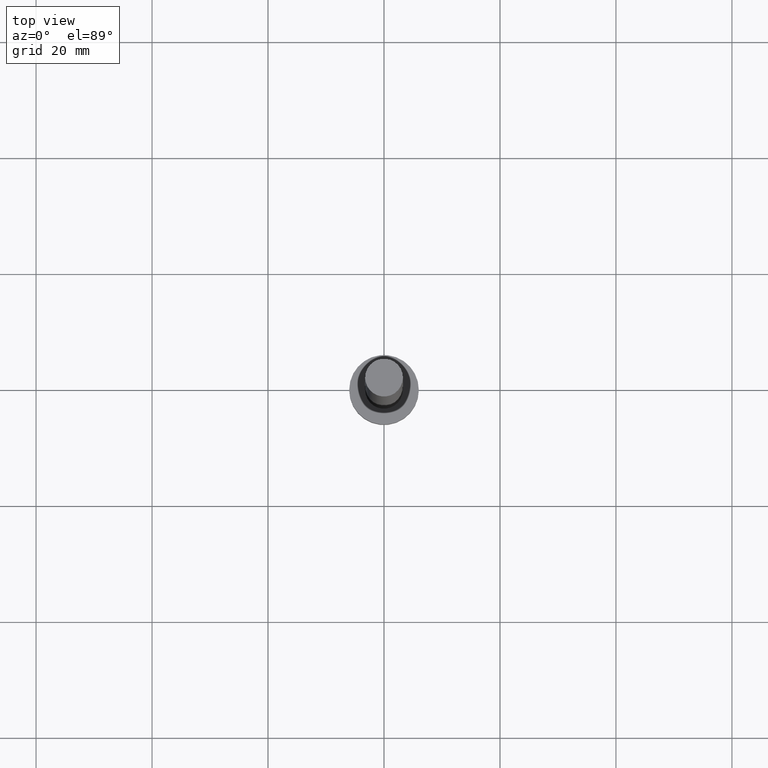
[diagram: clean part render]
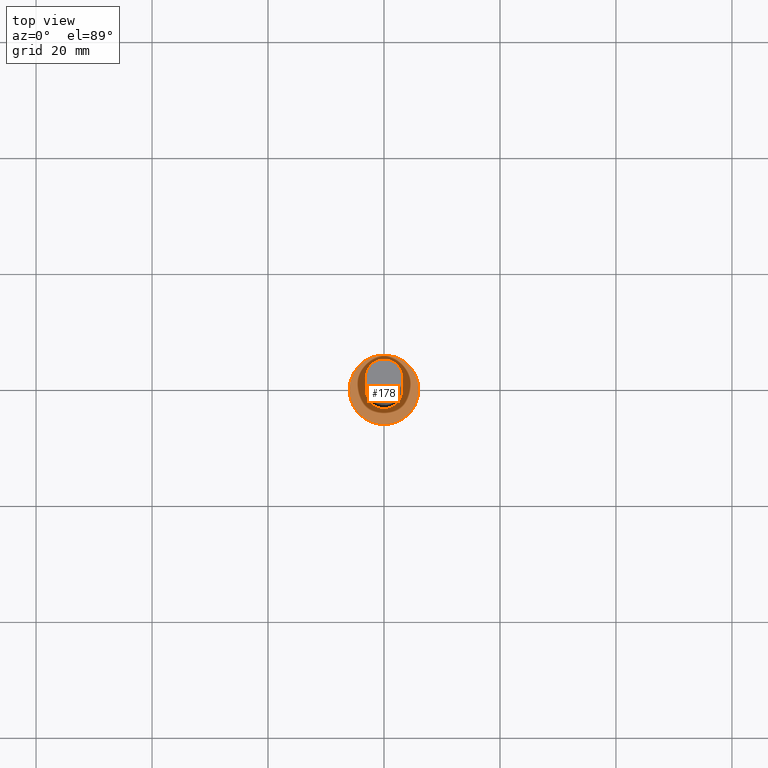
[diagram: same view with one face highlighted and labeled with its STEP entity id]
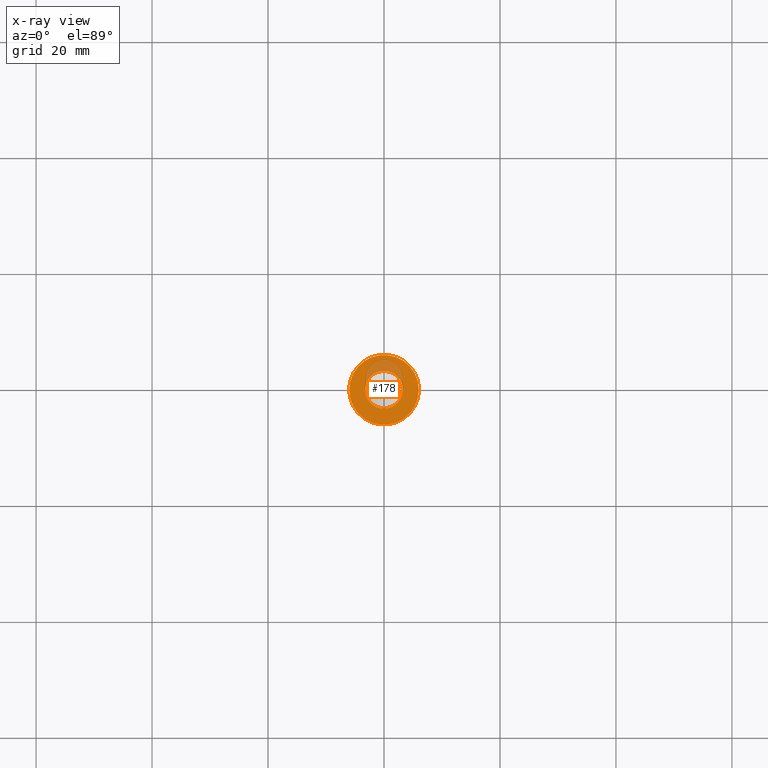
[diagram: x-ray of the same camera — body ghosted, the highlighted face saturated]
A machine part, top view. The second image highlights one B-rep face of the part: STEP entity #178.
The next image is the same camera in x-ray: the body ghosted, the highlighted face saturated — about 17% of this face is hidden behind the body in this view.
In plain terms, the highlighted planar face has unit normal (0, 0, 1).
Its self-contained STEP definition (entity closure, byte-faithful):
#4 = ORIENTED_EDGE ( 'NONE', *, *, #38, .F. ) ;
#8 = FACE_OUTER_BOUND ( 'NONE', #214, .T. ) ;
#12 = EDGE_CURVE ( 'NONE', #165, #32, #95, .T. ) ;
#19 = DIRECTION ( 'NONE',  ( 1.000000000000000000, 0.000000000000000000, 0.000000000000000000 ) ) ;
#20 = CIRCLE ( 'NONE', #212, 6.000000000000000888 ) ;
#32 = VERTEX_POINT ( 'NONE', #204 ) ;
#38 = EDGE_CURVE ( 'NONE', #90, #53, #244, .T. ) ;
#43 = CARTESIAN_POINT ( 'NONE',  ( 0.000000000000000000, 0.000000000000000000, 5.000000000000000000 ) ) ;
#47 = DIRECTION ( 'NONE',  ( 1.000000000000000000, 0.000000000000000000, 0.000000000000000000 ) ) ;
#51 = DIRECTION ( 'NONE',  ( 1.000000000000000000, 0.000000000000000000, 0.000000000000000000 ) ) ;
#53 = VERTEX_POINT ( 'NONE', #127 ) ;
#63 = DIRECTION ( 'NONE',  ( 1.000000000000000000, 0.000000000000000000, -0.000000000000000000 ) ) ;
#73 = CIRCLE ( 'NONE', #138, 3.250000000000000444 ) ;
#75 = EDGE_CURVE ( 'NONE', #53, #90, #73, .T. ) ;
#77 = AXIS2_PLACEMENT_3D ( 'NONE', #142, #143, #47 ) ;
#84 = CARTESIAN_POINT ( 'NONE',  ( 0.000000000000000000, 0.000000000000000000, 5.000000000000000000 ) ) ;
#88 = CARTESIAN_POINT ( 'NONE',  ( -6.000000000000000888, 0.000000000000000000, 5.000000000000000000 ) ) ;
#90 = VERTEX_POINT ( 'NONE', #152 ) ;
#95 = CIRCLE ( 'NONE', #150, 6.000000000000000888 ) ;
#99 = CARTESIAN_POINT ( 'NONE',  ( 0.000000000000000000, 0.000000000000000000, 5.000000000000000000 ) ) ;
#107 = ORIENTED_EDGE ( 'NONE', *, *, #12, .T. ) ;
#109 = FACE_BOUND ( 'NONE', #243, .T. ) ;
#123 = DIRECTION ( 'NONE',  ( 0.000000000000000000, 0.000000000000000000, 1.000000000000000000 ) ) ;
#127 = CARTESIAN_POINT ( 'NONE',  ( -3.250000000000000444, 0.000000000000000000, 5.000000000000000000 ) ) ;
#138 = AXIS2_PLACEMENT_3D ( 'NONE', #99, #159, #51 ) ;
#142 = CARTESIAN_POINT ( 'NONE',  ( 0.000000000000000000, 0.000000000000000000, 5.000000000000000000 ) ) ;
#143 = DIRECTION ( 'NONE',  ( 0.000000000000000000, 0.000000000000000000, 1.000000000000000000 ) ) ;
#144 = CARTESIAN_POINT ( 'NONE',  ( 0.000000000000000000, 0.000000000000000000, 5.000000000000000000 ) ) ;
#147 = EDGE_CURVE ( 'NONE', #32, #165, #20, .T. ) ;
#150 = AXIS2_PLACEMENT_3D ( 'NONE', #144, #239, #237 ) ;
#152 = CARTESIAN_POINT ( 'NONE',  ( 3.250000000000000444, 3.980102097228898231E-16, 5.000000000000000000 ) ) ;
#159 = DIRECTION ( 'NONE',  ( 0.000000000000000000, 0.000000000000000000, 1.000000000000000000 ) ) ;
#162 = DIRECTION ( 'NONE',  ( 0.000000000000000000, 0.000000000000000000, 1.000000000000000000 ) ) ;
#165 = VERTEX_POINT ( 'NONE', #88 ) ;
#174 = ORIENTED_EDGE ( 'NONE', *, *, #75, .F. ) ;
#178 = ADVANCED_FACE ( 'NONE', ( #109, #8 ), #186, .T. ) ;
#186 = PLANE ( 'NONE',  #199 ) ;
#199 = AXIS2_PLACEMENT_3D ( 'NONE', #84, #162, #63 ) ;
#204 = CARTESIAN_POINT ( 'NONE',  ( 6.000000000000000888, 7.347880794884120722E-16, 5.000000000000000000 ) ) ;
#212 = AXIS2_PLACEMENT_3D ( 'NONE', #43, #123, #19 ) ;
#214 = EDGE_LOOP ( 'NONE', ( #107, #245 ) ) ;
#237 = DIRECTION ( 'NONE',  ( 1.000000000000000000, 0.000000000000000000, 0.000000000000000000 ) ) ;
#239 = DIRECTION ( 'NONE',  ( 0.000000000000000000, 0.000000000000000000, 1.000000000000000000 ) ) ;
#243 = EDGE_LOOP ( 'NONE', ( #174, #4 ) ) ;
#244 = CIRCLE ( 'NONE', #77, 3.250000000000000444 ) ;
#245 = ORIENTED_EDGE ( 'NONE', *, *, #147, .T. ) ;